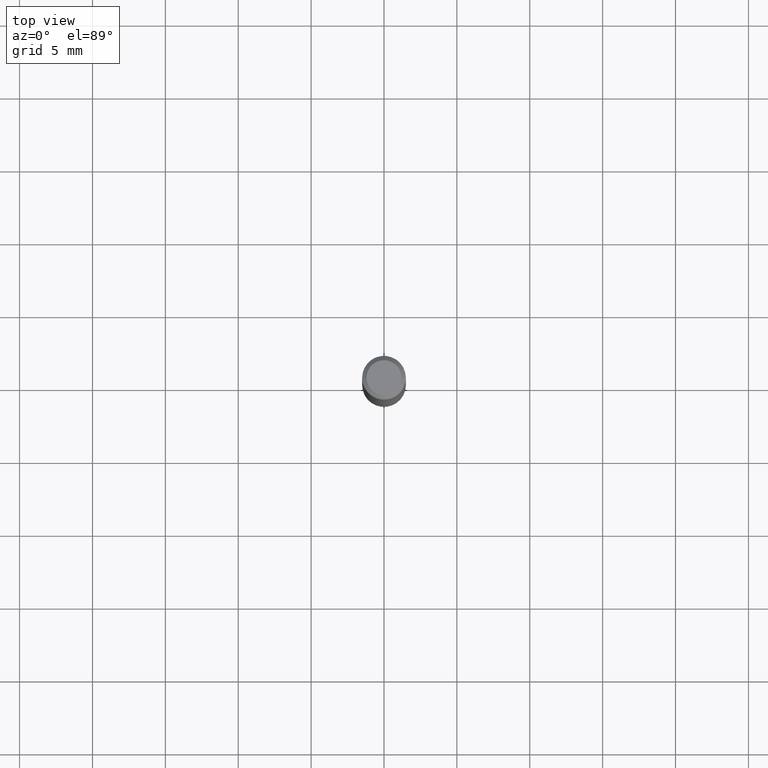
[diagram: clean part render]
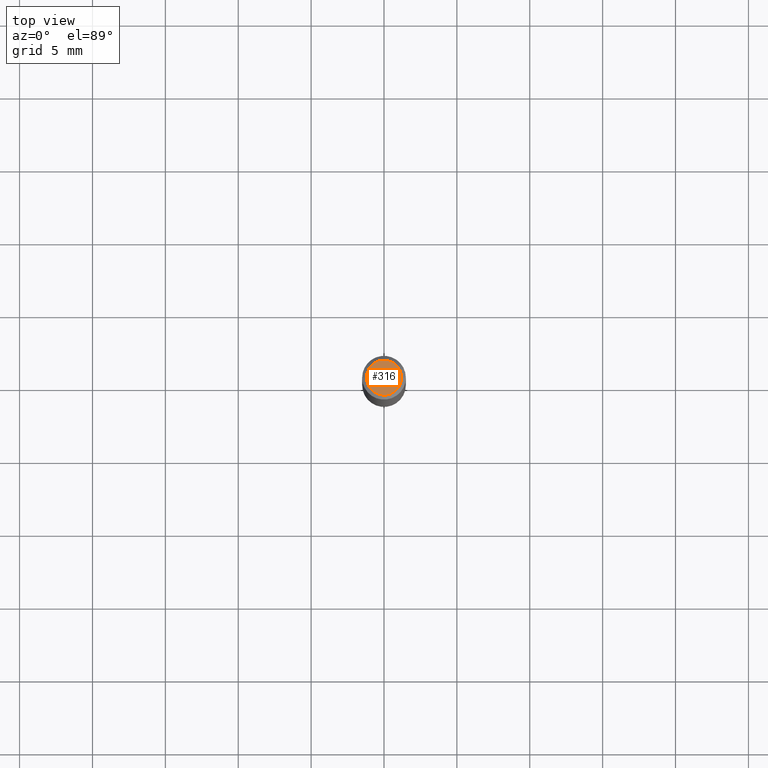
[diagram: same view with one face highlighted and labeled with its STEP entity id]
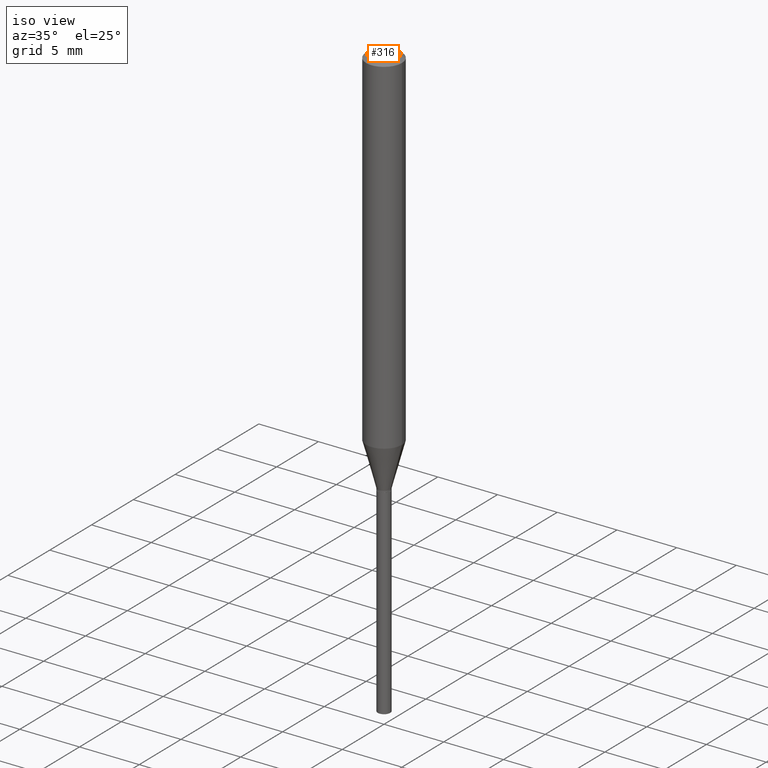
[diagram: same view with one face highlighted and labeled with its STEP entity id]
A machine part, top view. The second image highlights one B-rep face of the part: STEP entity #316.
A second angle (iso view) of the same face is appended — the face is thin or edge-on in the first view.
In plain terms, the highlighted planar face has unit normal (0, -0, -1).
Its self-contained STEP definition (entity closure, byte-faithful):
#1 = AXIS2_PLACEMENT_3D ( 'NONE', #14, #62, #412 ) ;
#4 = VERTEX_POINT ( 'NONE', #189 ) ;
#14 = CARTESIAN_POINT ( 'NONE',  ( 8.265746106709734507E-48, -1.180129479067563789E-33, -3.380025165646692144E-19 ) ) ;
#23 = EDGE_CURVE ( 'NONE', #480, #4, #453, .T. ) ;
#29 = DIRECTION ( 'NONE',  ( -2.445468806185136597E-29, 3.491481338843145583E-15, 1.000000000000000000 ) ) ;
#32 = CARTESIAN_POINT ( 'NONE',  ( -0.04724000000000000421, 3.504923541997677355E-16, -3.380025165670481712E-19 ) ) ;
#33 = DIRECTION ( 'NONE',  ( 1.000000000000000000, -6.982962677686266711E-15, 4.876185090822587894E-29 ) ) ;
#39 = CARTESIAN_POINT ( 'NONE',  ( 8.265746106709734507E-48, -1.180129479067563789E-33, -3.380025165646692144E-19 ) ) ;
#62 = DIRECTION ( 'NONE',  ( -2.445468806185136597E-29, 3.491481338843145583E-15, 1.000000000000000000 ) ) ;
#110 = ORIENTED_EDGE ( 'NONE', *, *, #270, .T. ) ;
#115 = PLANE ( 'NONE',  #181 ) ;
#159 = DIRECTION ( 'NONE',  ( -1.000000000000000000, 6.982962677686265922E-15, -4.876176775795935793E-29 ) ) ;
#181 = AXIS2_PLACEMENT_3D ( 'NONE', #393, #490, #159 ) ;
#189 = CARTESIAN_POINT ( 'NONE',  ( 0.04724000000000000421, -3.852183633974369345E-16, -3.380025165621689721E-19 ) ) ;
#270 = EDGE_CURVE ( 'NONE', #4, #480, #476, .T. ) ;
#304 = EDGE_LOOP ( 'NONE', ( #365, #110 ) ) ;
#316 = ADVANCED_FACE ( 'NONE', ( #388 ), #115, .F. ) ;
#365 = ORIENTED_EDGE ( 'NONE', *, *, #23, .T. ) ;
#388 = FACE_OUTER_BOUND ( 'NONE', #304, .T. ) ;
#393 = CARTESIAN_POINT ( 'NONE',  ( 4.132873053354867254E-48, -5.900647395337818946E-34, -1.690012582823346072E-19 ) ) ;
#412 = DIRECTION ( 'NONE',  ( 1.000000000000000000, -6.982962677686266711E-15, 4.876185090822587894E-29 ) ) ;
#447 = AXIS2_PLACEMENT_3D ( 'NONE', #39, #29, #33 ) ;
#453 = CIRCLE ( 'NONE', #1, 0.04724000000000000421 ) ;
#476 = CIRCLE ( 'NONE', #447, 0.04724000000000000421 ) ;
#480 = VERTEX_POINT ( 'NONE', #32 ) ;
#490 = DIRECTION ( 'NONE',  ( 2.438088387897960049E-29, -3.491481338843145188E-15, -1.000000000000000000 ) ) ;